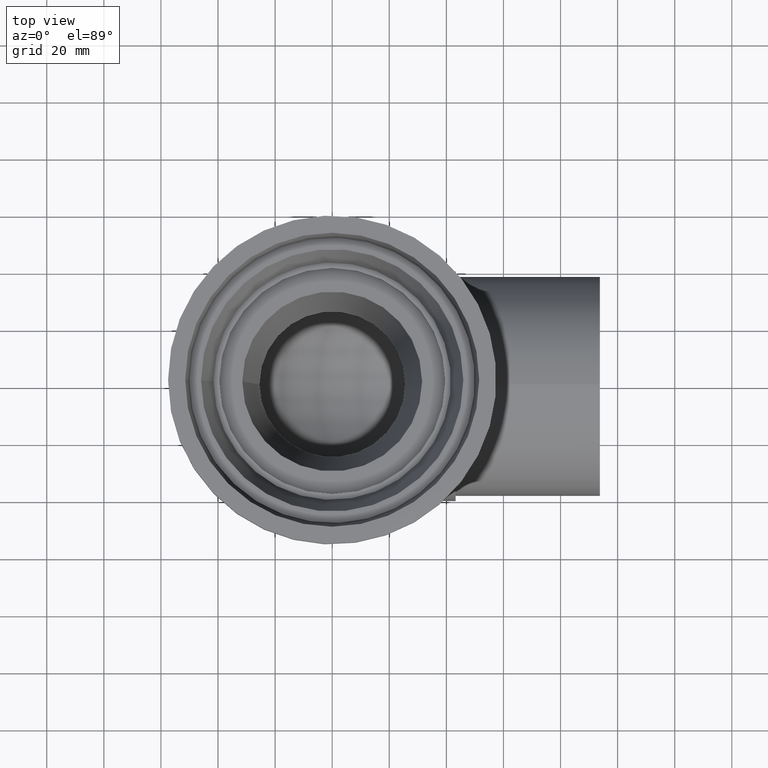
[diagram: clean part render]
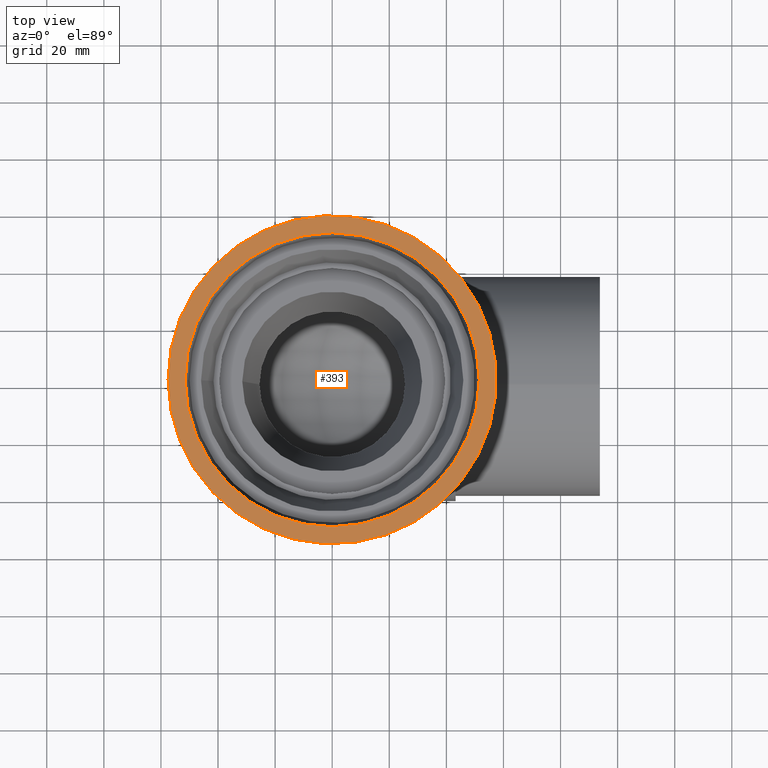
[diagram: same view with one face highlighted and labeled with its STEP entity id]
A machine part, top view. The second image highlights one B-rep face of the part: STEP entity #393.
In plain terms, the highlighted planar face has unit normal (0, 0, 1).
Its self-contained STEP definition (entity closure, byte-faithful):
#50=ORIENTED_EDGE('',*,*,#125,.T.);
#51=ORIENTED_EDGE('',*,*,#124,.F.);
#124=EDGE_CURVE('',#162,#162,#198,.T.);
#125=EDGE_CURVE('',#163,#163,#199,.T.);
#162=VERTEX_POINT('',#684);
#163=VERTEX_POINT('',#687);
#198=CIRCLE('',#449,57.5);
#199=CIRCLE('',#451,51.5);
#237=EDGE_LOOP('',(#50));
#238=EDGE_LOOP('',(#51));
#309=FACE_BOUND('',#237,.T.);
#310=FACE_BOUND('',#238,.T.);
#377=PLANE('',#450);
#393=ADVANCED_FACE('',(#309,#310),#377,.T.);
#449=AXIS2_PLACEMENT_3D('',#683,#536,#537);
#450=AXIS2_PLACEMENT_3D('',#685,#538,#539);
#451=AXIS2_PLACEMENT_3D('',#686,#540,#541);
#536=DIRECTION('',(0.,0.,-1.));
#537=DIRECTION('',(-1.,0.,0.));
#538=DIRECTION('',(0.,0.,1.));
#539=DIRECTION('',(1.,0.,0.));
#540=DIRECTION('',(0.,0.,-1.));
#541=DIRECTION('',(-1.,0.,0.));
#683=CARTESIAN_POINT('',(0.,0.,0.));
#684=CARTESIAN_POINT('',(-57.5,0.,0.));
#685=CARTESIAN_POINT('',(-57.5,0.,0.));
#686=CARTESIAN_POINT('',(0.,0.,0.));
#687=CARTESIAN_POINT('',(-51.5,0.,0.));